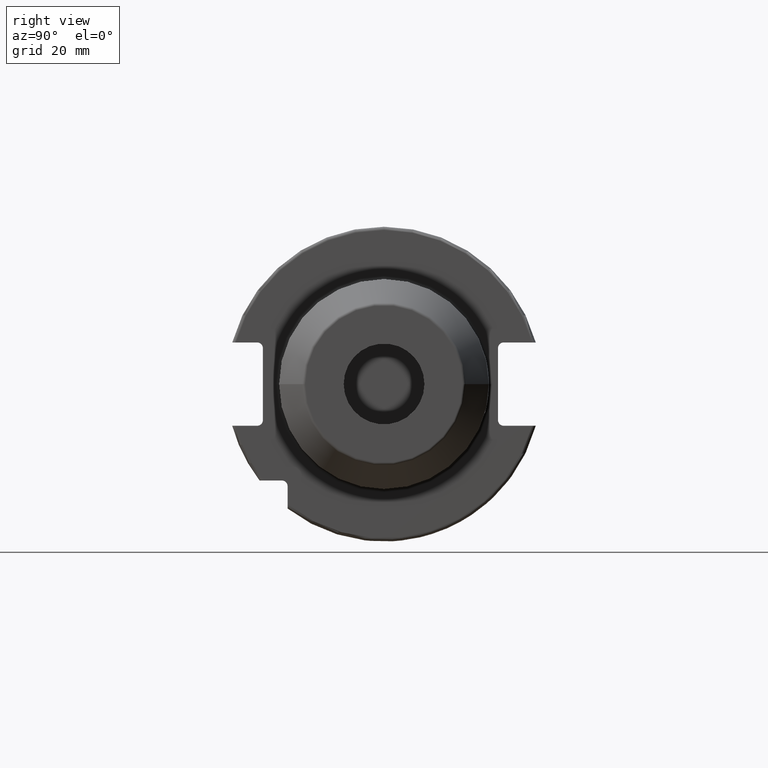
[diagram: clean part render]
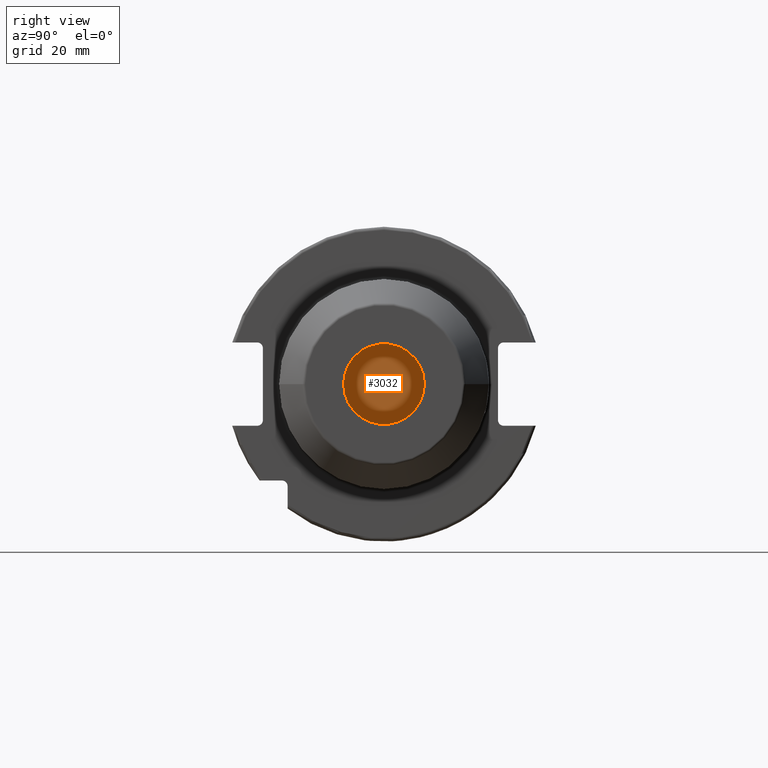
[diagram: same view with one face highlighted and labeled with its STEP entity id]
A machine part, right view. The second image highlights one B-rep face of the part: STEP entity #3032.
In plain terms, the highlighted planar face has unit normal (1, 0, 0).
Its self-contained STEP definition (entity closure, byte-faithful):
#1294=CARTESIAN_POINT('',(1.89E1,0.E0,0.E0));
#1295=DIRECTION('',(-1.E0,0.E0,0.E0));
#1296=DIRECTION('',(0.E0,1.E0,0.E0));
#1297=AXIS2_PLACEMENT_3D('',#1294,#1295,#1296);
#1299=CARTESIAN_POINT('',(1.89E1,0.E0,0.E0));
#1300=DIRECTION('',(1.E0,0.E0,0.E0));
#1301=DIRECTION('',(0.E0,1.E0,0.E0));
#1302=AXIS2_PLACEMENT_3D('',#1299,#1300,#1301);
#1723=CARTESIAN_POINT('',(1.89E1,1.25E1,0.E0));
#1724=CARTESIAN_POINT('',(1.89E1,-1.25E1,0.E0));
#1725=VERTEX_POINT('',#1723);
#1726=VERTEX_POINT('',#1724);
#3023=CARTESIAN_POINT('',(1.89E1,0.E0,0.E0));
#3024=DIRECTION('',(1.E0,0.E0,0.E0));
#3025=DIRECTION('',(0.E0,-1.E0,0.E0));
#3026=AXIS2_PLACEMENT_3D('',#3023,#3024,#3025);
#3027=PLANE('',#3026);
#3028=ORIENTED_EDGE('',*,*,#2991,.T.);
#3029=ORIENTED_EDGE('',*,*,#2965,.F.);
#3030=EDGE_LOOP('',(#3028,#3029));
#3031=FACE_OUTER_BOUND('',#3030,.F.);
#3032=ADVANCED_FACE('',(#3031),#3027,.T.);
#1298=CIRCLE('',#1297,1.25E1);
#1303=CIRCLE('',#1302,1.25E1);
#2965=EDGE_CURVE('',#1725,#1726,#1303,.T.);
#2991=EDGE_CURVE('',#1725,#1726,#1298,.T.);